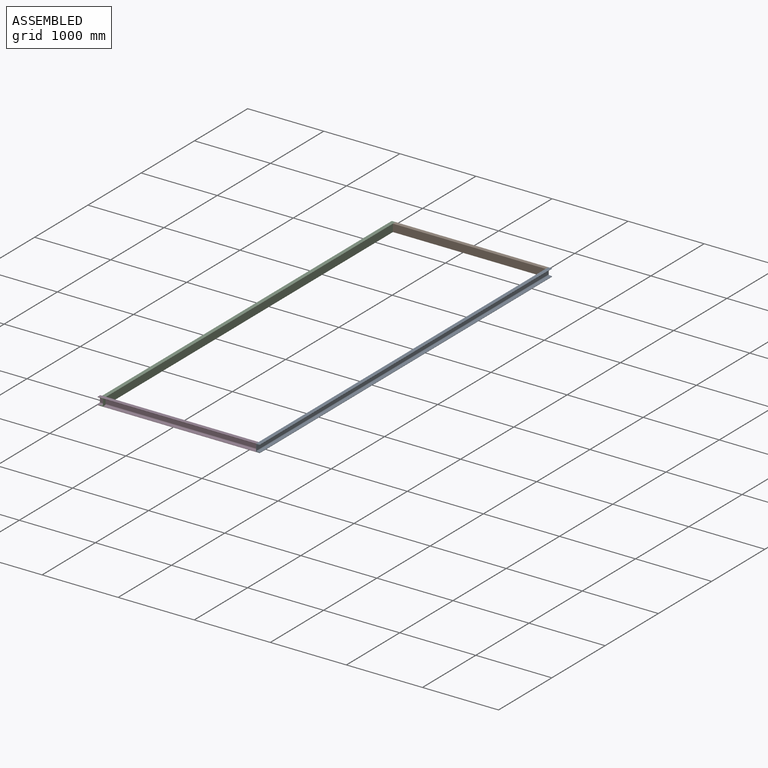
[diagram: assembled view]
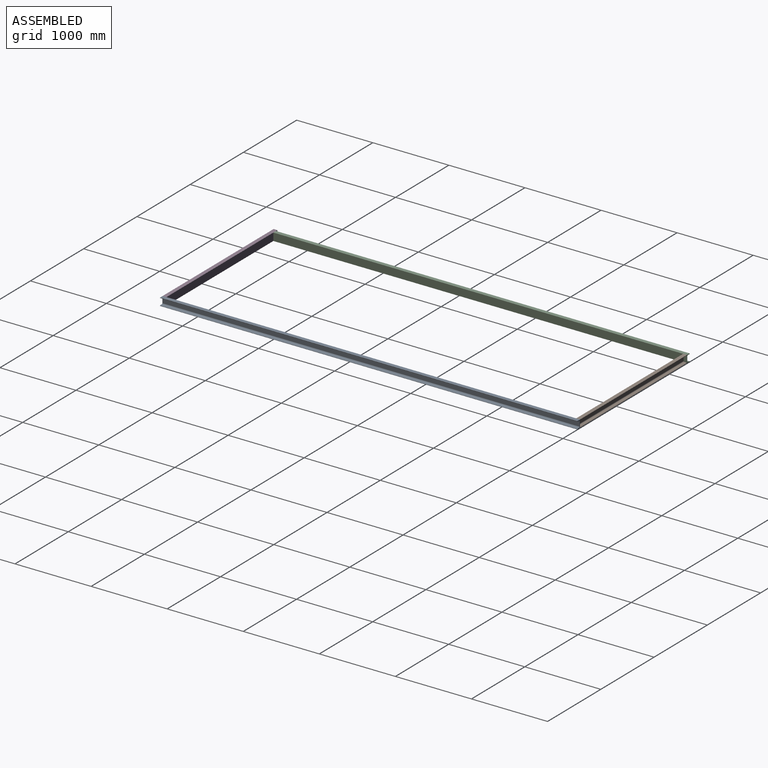
[diagram: assembled view, second angle]
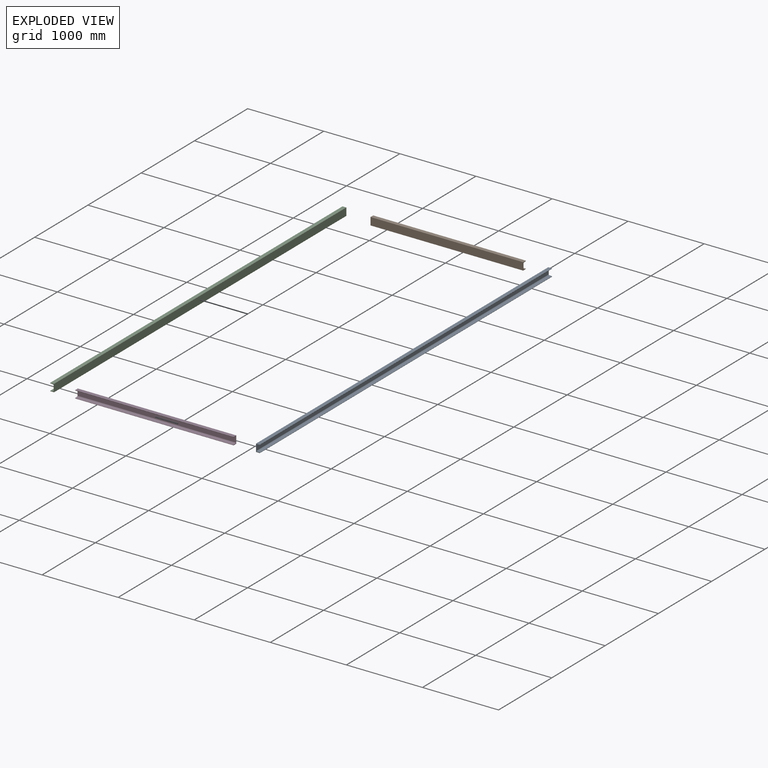
[diagram: exploded view]
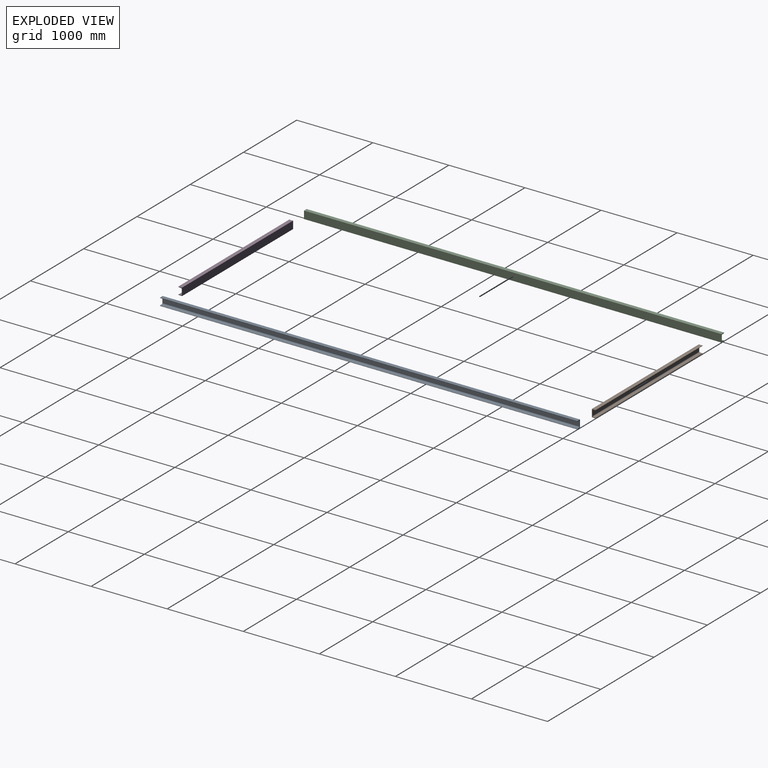
[diagram: exploded view, second angle]
ASSEMBLY  parts=4 mates=3
PART A: 14 faces, bbox 50x5486.4x100 mm
  f0: plane 100x50mm, normal (0,1,0), area 1345.4mm2, adj f2,f3,f4,f5,f6,f7,f8,f9
  f1: plane 100x50mm, normal (0,-1,0), area 1345.4mm2, adj f2,f3,f4,f5,f6,f7,f8,f9
  f2: plane 5486.4x2.35mm, normal (1,0,0), area 12868.9mm2, adj f0,f1,f3,f13
  f3: cylinder r=4.5mm len=5486.4mm, axis (0,-1,0), area 36810mm2, adj f0,f1,f2,f4
  f4: plane 5486.4x32.04mm, normal (0.08,0,1), area 176327.7mm2, adj f0,f1,f3,f5
  f5: cylinder r=8.5mm len=5486.4mm, axis (0,-1,0), area 69530.9mm2, adj f0,f1,f4,f6
  f6: plane 5486.4x64.27mm, normal (1,0,0), area 352586.8mm2, adj f0,f1,f5,f7
  f7: cylinder r=8.5mm len=5486.4mm, axis (0,-1,0), area 69530.9mm2, adj f0,f1,f6,f8
  f8: plane 5486.4x32.04mm, normal (0.08,0,-1), area 176327.7mm2, adj f0,f1,f7,f9
  f9: cylinder r=4.5mm len=5486.4mm, axis (0,-1,0), area 36810mm2, adj f0,f1,f8,f10
  f10: plane 5486.4x2.35mm, normal (1,0,0), area 12868.9mm2, adj f0,f1,f9,f11
  f11: plane 5486.4x50mm, normal (0,0,1), area 274320mm2, adj f0,f1,f10,f12
  f12: plane 5486.4x100mm, normal (-1,0,0), area 548640mm2, adj f0,f1,f11,f13
  f13: plane 5486.4x50mm, normal (0,0,-1), area 274320mm2, adj f0,f1,f2,f12
PART B: 14 faces, bbox 2006.6x50x100 mm
  f0: plane 100x50mm, normal (-1,0,0), area 1345.4mm2, adj f2,f3,f4,f5,f6,f7,f8,f9
  f1: plane 100x50mm, normal (1,0,0), area 1345.4mm2, adj f2,f3,f4,f5,f6,f7,f8,f9
  f2: plane 2006.6x2.35mm, normal (0,1,0), area 4706.7mm2, adj f0,f1,f3,f13
  f3: cylinder r=4.5mm len=2006.6mm, axis (1,0,0), area 13462.9mm2, adj f0,f1,f2,f4
  f4: plane 2006.6x32.04mm, normal (0,0.08,1), area 64490.2mm2, adj f0,f1,f3,f5
  f5: cylinder r=8.5mm len=2006.6mm, axis (1,0,0), area 25430.3mm2, adj f0,f1,f4,f6
  f6: plane 2006.6x64.27mm, normal (0,1,0), area 128955.4mm2, adj f0,f1,f5,f7
  f7: cylinder r=8.5mm len=2006.6mm, axis (1,0,0), area 25430.3mm2, adj f0,f1,f6,f8
  f8: plane 2006.6x32.04mm, normal (0,0.08,-1), area 64490.2mm2, adj f0,f1,f7,f9
  f9: cylinder r=4.5mm len=2006.6mm, axis (1,0,0), area 13462.9mm2, adj f0,f1,f8,f10
  f10: plane 2006.6x2.35mm, normal (0,1,0), area 4706.7mm2, adj f0,f1,f9,f11
  f11: plane 2006.6x50mm, normal (0,0,1), area 100330mm2, adj f0,f1,f10,f12
  f12: plane 2006.6x100mm, normal (0,-1,0), area 200660mm2, adj f0,f1,f11,f13
  f13: plane 2006.6x50mm, normal (0,0,-1), area 100330mm2, adj f0,f1,f2,f12
PART C: 14 faces, bbox 126.2x5487.1x100 mm
  f0: plane 100x50mm, normal (-0.01,-1,0), area 1345.4mm2, adj f2,f3,f4,f5,f6,f7,f8,f9
  f1: plane 100x50mm, normal (0.01,1,0), area 1345.4mm2, adj f2,f3,f4,f5,f6,f7,f8,f9
  f2: plane 5486.4x76.2mm, normal (-1,0.01,0), area 12870.1mm2, adj f0,f1,f3,f13
  f3: cylinder r=4.5mm len=5486.46mm, axis (0.01,1,0), area 36813.5mm2, adj f0,f1,f2,f4
  f4: plane 5486.85x108.23mm, normal (-0.08,0,1), area 176344.7mm2, adj f0,f1,f3,f5
  f5: cylinder r=8.5mm len=5486.51mm, axis (0.01,1,0), area 69537.6mm2, adj f0,f1,f4,f6
  f6: plane 5486.4x76.2mm, normal (-1,0.01,0), area 352620.8mm2, adj f0,f1,f5,f7
  f7: cylinder r=8.5mm len=5486.51mm, axis (0.01,1,0), area 69537.6mm2, adj f0,f1,f6,f8
  f8: plane 5486.85x108.23mm, normal (-0.08,0,-1), area 176344.7mm2, adj f0,f1,f7,f9
  f9: cylinder r=4.5mm len=5486.46mm, axis (0.01,1,0), area 36813.5mm2, adj f0,f1,f8,f10
  f10: plane 5486.4x76.2mm, normal (-1,0.01,0), area 12870.1mm2, adj f0,f1,f9,f11
  f11: plane 5487.09x126.2mm, normal (0,0,1), area 274346.5mm2, adj f0,f1,f10,f12
  f12: plane 5486.4x100mm, normal (1,-0.01,0), area 548692.9mm2, adj f0,f1,f11,f13
  f13: plane 5487.09x126.2mm, normal (0,0,-1), area 274346.5mm2, adj f0,f1,f2,f12
PART D: 14 faces, bbox 2082.8x50x100 mm
  f0: plane 100x50mm, normal (1,0,0), area 1345.4mm2, adj f2,f3,f4,f5,f6,f7,f8,f9
  f1: plane 100x50mm, normal (-1,0,0), area 1345.4mm2, adj f2,f3,f4,f5,f6,f7,f8,f9
  f2: plane 2082.8x2.35mm, normal (0,-1,0), area 4885.4mm2, adj f0,f1,f3,f13
  f3: cylinder r=4.5mm len=2082.8mm, axis (-1,0,0), area 13974.2mm2, adj f0,f1,f2,f4
  f4: plane 2082.8x32.04mm, normal (0,-0.08,1), area 66939.2mm2, adj f0,f1,f3,f5
  f5: cylinder r=8.5mm len=2082.8mm, axis (-1,0,0), area 26396mm2, adj f0,f1,f4,f6
  f6: plane 2082.8x64.27mm, normal (0,-1,0), area 133852.4mm2, adj f0,f1,f5,f7
  f7: cylinder r=8.5mm len=2082.8mm, axis (-1,0,0), area 26396mm2, adj f0,f1,f6,f8
  f8: plane 2082.8x32.04mm, normal (0,-0.08,-1), area 66939.2mm2, adj f0,f1,f7,f9
  f9: cylinder r=4.5mm len=2082.8mm, axis (-1,0,0), area 13974.2mm2, adj f0,f1,f8,f10
  f10: plane 2082.8x2.35mm, normal (0,-1,0), area 4885.4mm2, adj f0,f1,f9,f11
  f11: plane 2082.8x50mm, normal (0,0,1), area 104140mm2, adj f0,f1,f10,f12
  f12: plane 2082.8x100mm, normal (0,1,0), area 208280mm2, adj f0,f1,f11,f13
  f13: plane 2082.8x50mm, normal (0,0,-1), area 104140mm2, adj f0,f1,f2,f12
PLACE A t=(62.71,-25.17,-92.06)mm
PLACE B t=(62.71,-75.17,-92.06)mm
PLACE C rot(axis=(0,0,1),0.8deg) t=(62.71,-25.17,-92.06)mm
PLACE D t=(62.71,24.83,-92.06)mm
MATE fastened B.f1 <-> A.f12  axis (1,0,0) through (2069.31,-25.17,7.94)mm
MATE fastened B.f0 <-> C.f12  axis (-1,0,0) through (62.71,-25.17,7.94)mm
MATE fastened A.f12 <-> D.f0  axis (-1,0,0) through (2069.31,-5511.57,7.94)mm
